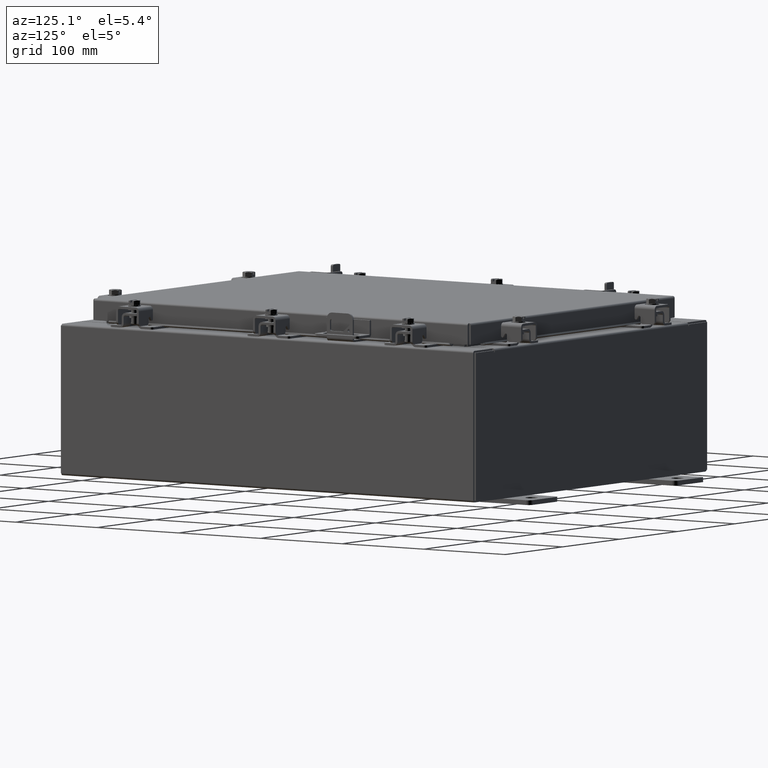
[diagram: clean part render]
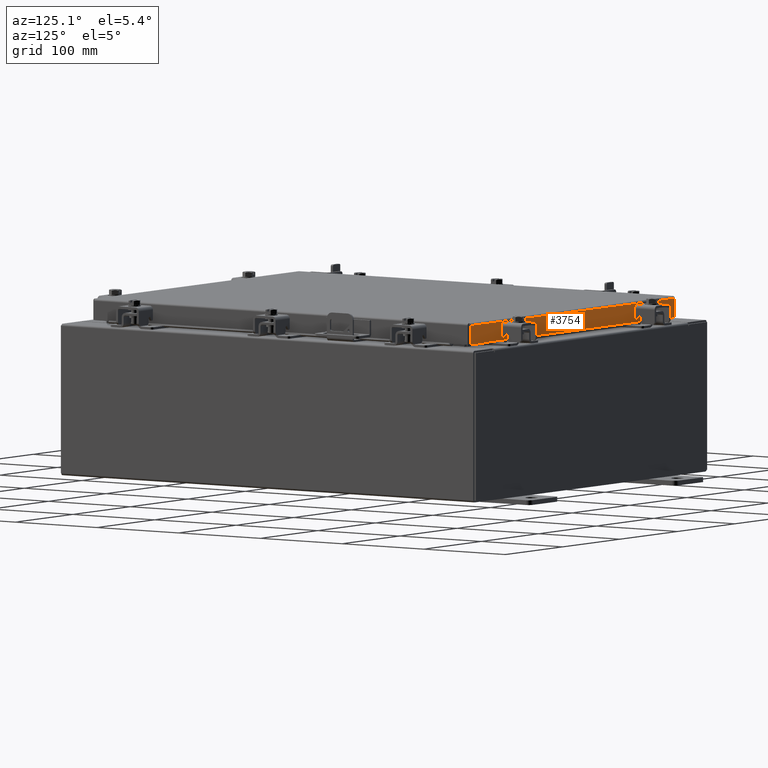
[diagram: same view with one face highlighted and labeled with its STEP entity id]
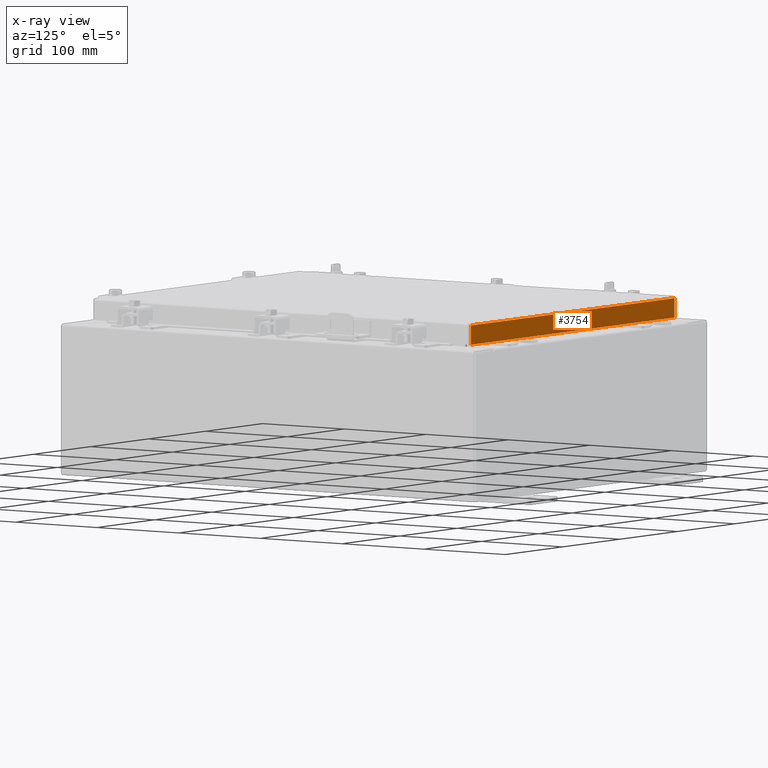
[diagram: x-ray of the same camera — body ghosted, the highlighted face saturated]
A machine part, auxiliary view. The second image highlights one B-rep face of the part: STEP entity #3754.
The next image is the same camera in x-ray: the body ghosted, the highlighted face saturated — about 0% of this face is hidden behind the body in this view.
In plain terms, the highlighted planar face has unit normal (0, -1, -0).
Its self-contained STEP definition (entity closure, byte-faithful):
#37 = LINE ( 'NONE', #9899, #13877 ) ;
#122 = DIRECTION ( 'NONE',  ( -0.0000000000000000000, 2.818880942772353800E-015, -1.000000000000000000 ) ) ;
#991 = ORIENTED_EDGE ( 'NONE', *, *, #6050, .F. ) ;
#2293 = ORIENTED_EDGE ( 'NONE', *, *, #4931, .T. ) ;
#3257 = DIRECTION ( 'NONE',  ( 0.0000000000000000000, 2.818880942772353800E-015, -1.000000000000000000 ) ) ;
#3347 = VERTEX_POINT ( 'NONE', #16319 ) ;
#3754 = ADVANCED_FACE ( 'NONE', ( #7638 ), #17154, .F. ) ;
#4623 = VERTEX_POINT ( 'NONE', #19148 ) ;
#4931 = EDGE_CURVE ( 'NONE', #11504, #4623, #21011, .T. ) ;
#5306 = CARTESIAN_POINT ( 'NONE',  ( -6.989157864376273300, 9.093999999999995900, -0.07469999999999978000 ) ) ;
#5429 = LINE ( 'NONE', #19998, #8954 ) ;
#5555 = AXIS2_PLACEMENT_3D ( 'NONE', #6652, #13667, #3257 ) ;
#6050 = EDGE_CURVE ( 'NONE', #16838, #14850, #11067, .T. ) ;
#6529 = VECTOR ( 'NONE', #16482, 39.37007874015748100 ) ;
#6652 = CARTESIAN_POINT ( 'NONE',  ( -3.215592570974071400E-030, 9.093999999999995900, 2.589571694958335700E-014 ) ) ;
#6761 = LINE ( 'NONE', #14027, #10819 ) ;
#7057 = DIRECTION ( 'NONE',  ( 1.000000000000000000, 4.379057701015054300E-047, 1.254380613084043100E-016 ) ) ;
#7638 = FACE_OUTER_BOUND ( 'NONE', #21074, .T. ) ;
#7739 = ORIENTED_EDGE ( 'NONE', *, *, #8819, .F. ) ;
#8069 = EDGE_CURVE ( 'NONE', #11504, #18007, #5429, .T. ) ;
#8819 = EDGE_CURVE ( 'NONE', #3347, #16838, #6761, .T. ) ;
#8954 = VECTOR ( 'NONE', #9480, 39.37007874015748100 ) ;
#9480 = DIRECTION ( 'NONE',  ( -1.000000000000000000, -1.359980617386811900E-031, -7.719265311286419400E-017 ) ) ;
#9899 = CARTESIAN_POINT ( 'NONE',  ( -7.078000000000003800, 9.093999999999999400, -0.8500000000000014200 ) ) ;
#10819 = VECTOR ( 'NONE', #7057, 39.37007874015748100 ) ;
#11067 = LINE ( 'NONE', #13110, #19867 ) ;
#11318 = DIRECTION ( 'NONE',  ( 1.000000000000000000, -0.0000000000000000000, -0.0000000000000000000 ) ) ;
#11504 = VERTEX_POINT ( 'NONE', #17127 ) ;
#11674 = ORIENTED_EDGE ( 'NONE', *, *, #8069, .F. ) ;
#12804 = EDGE_CURVE ( 'NONE', #18007, #3347, #20467, .T. ) ;
#13110 = CARTESIAN_POINT ( 'NONE',  ( -6.239157864376272400, 9.093999999999999400, -0.8500000000000018700 ) ) ;
#13667 = DIRECTION ( 'NONE',  ( 3.535949605205710500E-031, -1.000000000000000000, -2.818880942772353800E-015 ) ) ;
#13678 = ORIENTED_EDGE ( 'NONE', *, *, #12804, .F. ) ;
#13877 = VECTOR ( 'NONE', #22128, 39.37007874015748100 ) ;
#14027 = CARTESIAN_POINT ( 'NONE',  ( -7.078000000000003800, 9.093999999999999400, -0.8500000000000014200 ) ) ;
#14850 = VERTEX_POINT ( 'NONE', #18222 ) ;
#16319 = CARTESIAN_POINT ( 'NONE',  ( -6.989157864376273300, 9.093999999999999400, -0.8500000000000014200 ) ) ;
#16482 = DIRECTION ( 'NONE',  ( 0.0000000000000000000, 2.818880942772353800E-015, -1.000000000000000000 ) ) ;
#16838 = VERTEX_POINT ( 'NONE', #21705 ) ;
#17127 = CARTESIAN_POINT ( 'NONE',  ( 6.989157864376266200, 9.093999999999995900, -0.08769999999999897300 ) ) ;
#17154 = PLANE ( 'NONE',  #5555 ) ;
#18007 = VERTEX_POINT ( 'NONE', #18496 ) ;
#18222 = CARTESIAN_POINT ( 'NONE',  ( 6.239157864376261700, 9.093999999999999400, -0.8500000000000018700 ) ) ;
#18496 = CARTESIAN_POINT ( 'NONE',  ( -6.989157864376273300, 9.093999999999995900, -0.08769999999999951400 ) ) ;
#18895 = ORIENTED_EDGE ( 'NONE', *, *, #20062, .F. ) ;
#19148 = CARTESIAN_POINT ( 'NONE',  ( 6.989157864376266200, 9.093999999999999400, -0.8499999999999996400 ) ) ;
#19867 = VECTOR ( 'NONE', #11318, 39.37007874015748100 ) ;
#19910 = VECTOR ( 'NONE', #122, 39.37007874015748100 ) ;
#19998 = CARTESIAN_POINT ( 'NONE',  ( -7.078000000000003800, 9.093999999999995900, -0.08770000000000007000 ) ) ;
#20062 = EDGE_CURVE ( 'NONE', #14850, #4623, #37, .T. ) ;
#20467 = LINE ( 'NONE', #5306, #19910 ) ;
#21011 = LINE ( 'NONE', #21638, #6529 ) ;
#21074 = EDGE_LOOP ( 'NONE', ( #11674, #2293, #18895, #991, #7739, #13678 ) ) ;
#21638 = CARTESIAN_POINT ( 'NONE',  ( 6.989157864376265300, 9.093999999999995900, 2.589571694958335700E-014 ) ) ;
#21705 = CARTESIAN_POINT ( 'NONE',  ( -6.239157864376272400, 9.093999999999999400, -0.8500000000000018700 ) ) ;
#22128 = DIRECTION ( 'NONE',  ( 1.000000000000000000, 4.379057701015054300E-047, 1.254380613084043100E-016 ) ) ;